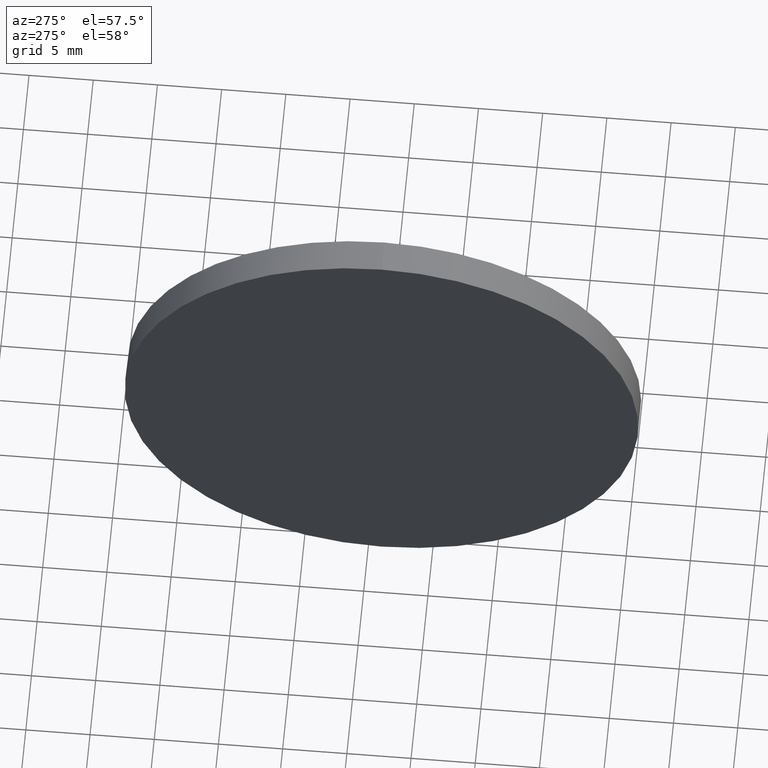
[diagram: clean part render]
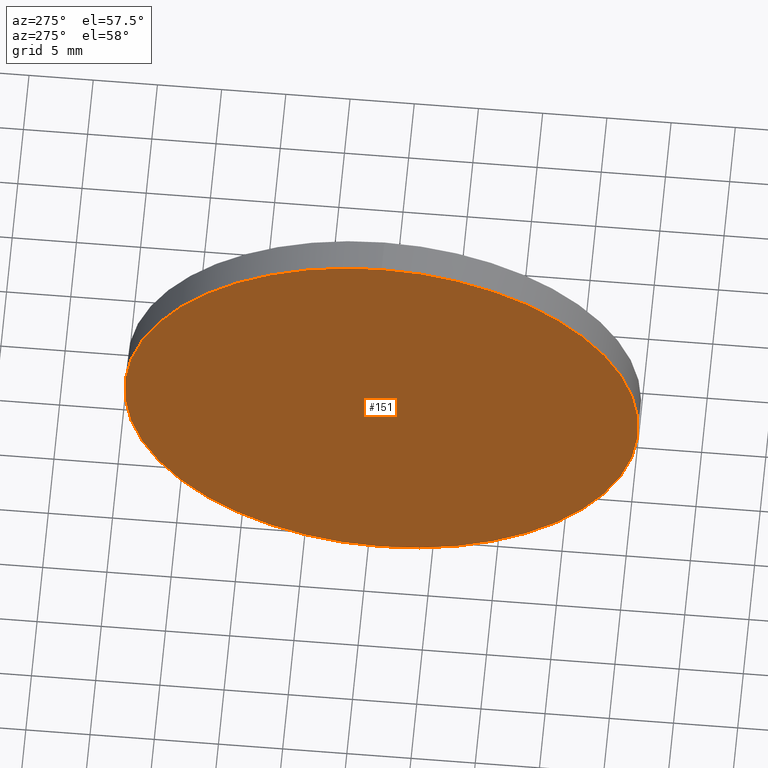
[diagram: same view with one face highlighted and labeled with its STEP entity id]
A machine part, auxiliary view. The second image highlights one B-rep face of the part: STEP entity #151.
In plain terms, the highlighted planar face has unit normal (1, 0, 0).
Its self-contained STEP definition (entity closure, byte-faithful):
#2 = CARTESIAN_POINT ( 'NONE',  ( 858.6588966541114600, 303.9353003407363200, 19.99999999999996100 ) ) ;
#6 = CARTESIAN_POINT ( 'NONE',  ( 858.6588966541114600, 303.9353003407363200, 0.0000000000000000000 ) ) ;
#9 = AXIS2_PLACEMENT_3D ( 'NONE', #10, #39, #183 ) ;
#10 = CARTESIAN_POINT ( 'NONE',  ( 858.6588966541114600, 303.9353003407363200, 0.0000000000000000000 ) ) ;
#33 = PLANE ( 'NONE',  #9 ) ;
#34 = ORIENTED_EDGE ( 'NONE', *, *, #104, .T. ) ;
#39 = DIRECTION ( 'NONE',  ( 1.000000000000000000, 0.0000000000000000000, 0.0000000000000000000 ) ) ;
#63 = DIRECTION ( 'NONE',  ( -1.000000000000000000, -0.0000000000000000000, -0.0000000000000000000 ) ) ;
#67 = VERTEX_POINT ( 'NONE', #101 ) ;
#72 = CIRCLE ( 'NONE', #136, 19.99999999999996100 ) ;
#73 = VERTEX_POINT ( 'NONE', #2 ) ;
#76 = EDGE_CURVE ( 'NONE', #73, #67, #97, .T. ) ;
#88 = ORIENTED_EDGE ( 'NONE', *, *, #76, .T. ) ;
#97 = CIRCLE ( 'NONE', #121, 19.99999999999996100 ) ;
#99 = EDGE_LOOP ( 'NONE', ( #88, #34 ) ) ;
#101 = CARTESIAN_POINT ( 'NONE',  ( 858.6588966541114600, 303.9353003407363200, -19.99999999999996100 ) ) ;
#104 = EDGE_CURVE ( 'NONE', #67, #73, #72, .T. ) ;
#106 = DIRECTION ( 'NONE',  ( 0.0000000000000000000, 0.0000000000000000000, 1.000000000000000000 ) ) ;
#108 = DIRECTION ( 'NONE',  ( -1.000000000000000000, -0.0000000000000000000, -0.0000000000000000000 ) ) ;
#121 = AXIS2_PLACEMENT_3D ( 'NONE', #6, #63, #106 ) ;
#128 = FACE_OUTER_BOUND ( 'NONE', #99, .T. ) ;
#136 = AXIS2_PLACEMENT_3D ( 'NONE', #150, #108, #179 ) ;
#150 = CARTESIAN_POINT ( 'NONE',  ( 858.6588966541114600, 303.9353003407363200, 0.0000000000000000000 ) ) ;
#151 = ADVANCED_FACE ( 'NONE', ( #128 ), #33, .F. ) ;
#179 = DIRECTION ( 'NONE',  ( 0.0000000000000000000, 0.0000000000000000000, 1.000000000000000000 ) ) ;
#183 = DIRECTION ( 'NONE',  ( 0.0000000000000000000, 0.0000000000000000000, -1.000000000000000000 ) ) ;